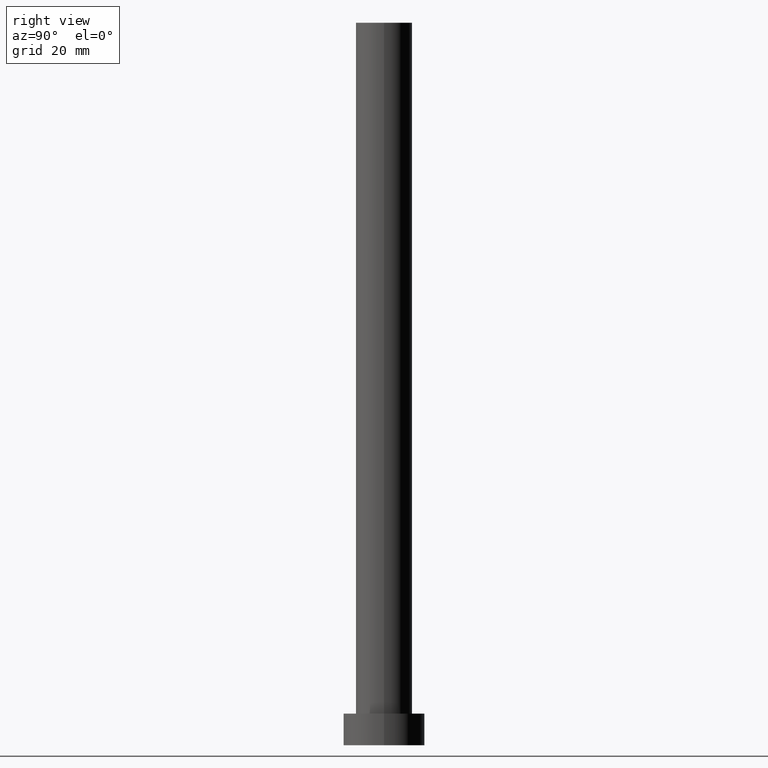
[diagram: clean part render]
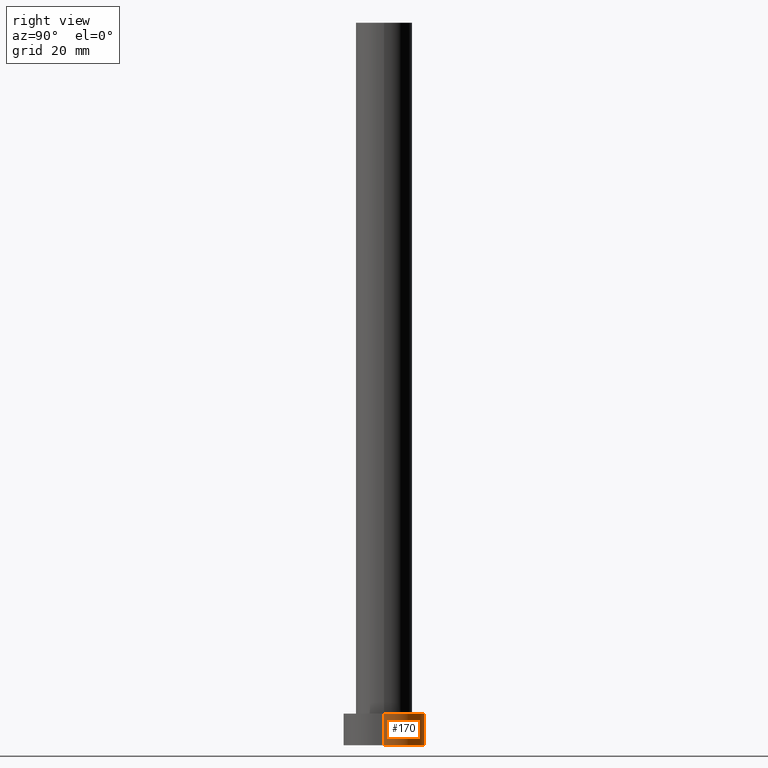
[diagram: same view with one face highlighted and labeled with its STEP entity id]
A machine part, right view. The second image highlights one B-rep face of the part: STEP entity #170.
In plain terms, the highlighted cylindrical surface (partial cylindrical patch) has radius 9 mm, axis along (-0, -0, -1).
Its self-contained STEP definition (entity closure, byte-faithful):
#3 = DIRECTION ( 'NONE',  ( -0.000000000000000000, -0.000000000000000000, -1.000000000000000000 ) ) ;
#4 = DIRECTION ( 'NONE',  ( -0.000000000000000000, -0.000000000000000000, -1.000000000000000000 ) ) ;
#5 = FACE_OUTER_BOUND ( 'NONE', #35, .T. ) ;
#8 = EDGE_CURVE ( 'NONE', #63, #89, #39, .T. ) ;
#10 = DIRECTION ( 'NONE',  ( 1.000000000000000000, 0.000000000000000000, 0.000000000000000000 ) ) ;
#35 = EDGE_LOOP ( 'NONE', ( #193, #146, #81, #142 ) ) ;
#39 = LINE ( 'NONE', #169, #45 ) ;
#45 = VECTOR ( 'NONE', #4, 1000.000000000000000 ) ;
#55 = EDGE_CURVE ( 'NONE', #89, #185, #221, .T. ) ;
#57 = AXIS2_PLACEMENT_3D ( 'NONE', #64, #121, #141 ) ;
#58 = LINE ( 'NONE', #116, #172 ) ;
#63 = VERTEX_POINT ( 'NONE', #228 ) ;
#64 = CARTESIAN_POINT ( 'NONE',  ( 0.000000000000000000, 0.000000000000000000, 0.000000000000000000 ) ) ;
#67 = AXIS2_PLACEMENT_3D ( 'NONE', #225, #229, #10 ) ;
#74 = DIRECTION ( 'NONE',  ( -1.000000000000000000, 0.000000000000000000, 0.000000000000000000 ) ) ;
#75 = CARTESIAN_POINT ( 'NONE',  ( -9.000000000000000000, 0.000000000000000000, 0.000000000000000000 ) ) ;
#81 = ORIENTED_EDGE ( 'NONE', *, *, #55, .T. ) ;
#89 = VERTEX_POINT ( 'NONE', #155 ) ;
#93 = CARTESIAN_POINT ( 'NONE',  ( 0.000000000000000000, 0.000000000000000000, 7.000000000000000000 ) ) ;
#94 = VERTEX_POINT ( 'NONE', #161 ) ;
#95 = CIRCLE ( 'NONE', #67, 9.000000000000000000 ) ;
#116 = CARTESIAN_POINT ( 'NONE',  ( -9.000000000000000000, 0.000000000000000000, 7.000000000000000000 ) ) ;
#121 = DIRECTION ( 'NONE',  ( 0.000000000000000000, 0.000000000000000000, 1.000000000000000000 ) ) ;
#131 = DIRECTION ( 'NONE',  ( -0.000000000000000000, -0.000000000000000000, -1.000000000000000000 ) ) ;
#138 = CYLINDRICAL_SURFACE ( 'NONE', #192, 9.000000000000000000 ) ;
#141 = DIRECTION ( 'NONE',  ( 1.000000000000000000, 0.000000000000000000, 0.000000000000000000 ) ) ;
#142 = ORIENTED_EDGE ( 'NONE', *, *, #164, .F. ) ;
#146 = ORIENTED_EDGE ( 'NONE', *, *, #8, .T. ) ;
#155 = CARTESIAN_POINT ( 'NONE',  ( 9.000000000000000000, 1.102182119232617714E-15, 0.000000000000000000 ) ) ;
#161 = CARTESIAN_POINT ( 'NONE',  ( -9.000000000000000000, 0.000000000000000000, 7.000000000000000000 ) ) ;
#164 = EDGE_CURVE ( 'NONE', #94, #185, #58, .T. ) ;
#169 = CARTESIAN_POINT ( 'NONE',  ( 9.000000000000000000, 1.102182119232617714E-15, 7.000000000000000000 ) ) ;
#170 = ADVANCED_FACE ( 'NONE', ( #5 ), #138, .T. ) ;
#172 = VECTOR ( 'NONE', #131, 1000.000000000000000 ) ;
#185 = VERTEX_POINT ( 'NONE', #75 ) ;
#192 = AXIS2_PLACEMENT_3D ( 'NONE', #93, #3, #74 ) ;
#193 = ORIENTED_EDGE ( 'NONE', *, *, #252, .F. ) ;
#221 = CIRCLE ( 'NONE', #57, 9.000000000000000000 ) ;
#225 = CARTESIAN_POINT ( 'NONE',  ( 0.000000000000000000, 0.000000000000000000, 7.000000000000000000 ) ) ;
#228 = CARTESIAN_POINT ( 'NONE',  ( 9.000000000000000000, 1.102182119232617714E-15, 7.000000000000000000 ) ) ;
#229 = DIRECTION ( 'NONE',  ( 0.000000000000000000, 0.000000000000000000, 1.000000000000000000 ) ) ;
#252 = EDGE_CURVE ( 'NONE', #63, #94, #95, .T. ) ;